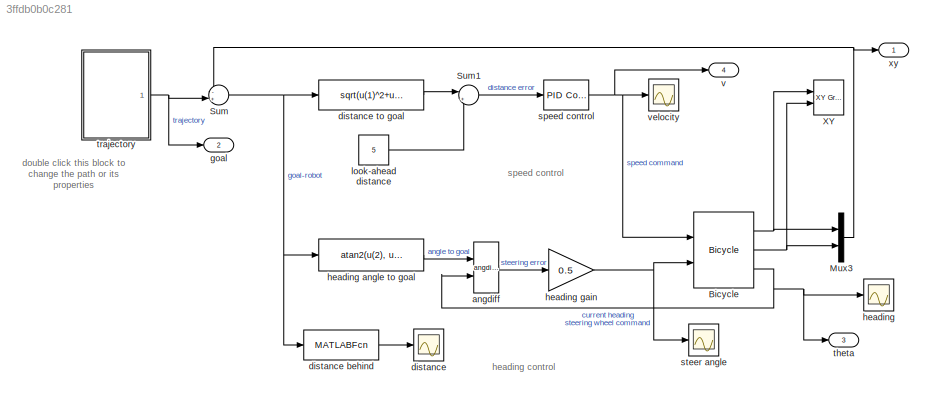
MODEL slx_3ffdb0b0c281
KIND model
CONFIG AbsTol = auto
CONFIG EnableMultiTasking = on
CONFIG FixedStep = 0.2
CONFIG MaxStep = 0.1
CONFIG MinStep = auto
CONFIG RelTol = 1e-3
CONFIG SampleTimeConstraint = Unconstrained
CONFIG Solver = ode45
CONFIG SolverName = ode45
CONFIG StartFcn = % remove the red dashed line draw in StopFcn\nh = findobj('Tag',  'SL_PURSUIT_PATH');\nif ~isempty(h)\n    delete(h)\nend
CONFIG StartTime = 0.0
CONFIG StopFcn = % get the waypoints from trajectory block\nh = getSimulinkBlockHandle([gcs '/trajectory'])\npath = str2num(get_param(h, 'path'));\n\n% overlay it on the XY scope, tag it so it can be cleaned up in StartFcn\nset(0, 'ShowHiddenHandles', 'on')\nhold on\nplot(path(:,1), path(:,2), 'Color',  'red', 'LineStyle', '--', 'LineWidth', 2, 'Tag', 'SL_PURSUIT_PATH')\nhold off\nset(0, 'ShowHiddenHandles', 'on')
CONFIG StopTime = 76
BLOCK [Reference] Bicycle  REF=roblocks/Vehicles/Bicycle  (lib defined in mdl_2a292b13c81b, mdl_69400f8cfe22, +12 more)
  Ports = [2, 3]
  SourceBlock = roblocks/Vehicles/Bicycle
BLOCK [Mux] Mux3
  DisplayOption = bar
  Inputs = 2
  Ports = [2, 1]
BLOCK [Sum] Sum
  IconShape = round
  InputSameDT = off
  Inputs = -+|
  OutDataTypeStr = Inherit: Inherit via internal rule
  Ports = [2, 1]
  SaturateOnIntegerOverflow = off
BLOCK [Sum] Sum1
  IconShape = round
  InputSameDT = off
  Inputs = |+-
  OutDataTypeStr = Inherit: Inherit via internal rule
  Ports = [2, 1]
  SaturateOnIntegerOverflow = off
BLOCK [Reference] XY  REF=simulink/Sinks/XY Graph
  Ports = [2]
  SourceBlock = simulink/Sinks/XY Graph
  SourceProductBaseCode = SL
  SourceProductName = Simulink
  SourceType = XY scope.
BLOCK [Reference] angdiff  REF=roblocks/Toolbox/angdiff  (lib defined in mdl_2a292b13c81b, mdl_69400f8cfe22, +12 more)
  Ports = [2, 1]
  SourceBlock = roblocks/Toolbox/angdiff
BLOCK [Scope] distance
  Floating = off
  NumInputPorts = 1
  Ports = [1]
  ScopeSpecificationString = Simulink.scopes.TimeScopeBlockCfg('CurrentConfiguration', extmgr.ConfigurationSet(extmgr.Configuration('Core','General UI',true),extmgr.Configuration('Core','Source UI',true),extmgr.Configuration('Sources','WiredSimulink',true,'DataLoggingVariableName','ScopeData3','DataLoggingSaveFormat','StructureWithTime','DataLoggingLimitDataPoints',true,'DataLoggingDecimation','1'),extmgr.Configuration('Visua...<+1671ch>
BLOCK [MATLABFcn] distance behind
  MATLABFcn = norm(u)
  Ports = [1, 1]
BLOCK [Fcn] distance to goal
  Expr = sqrt(u(1)^2+u(2)^2)
BLOCK [Outport] goal
  IconDisplay = Port number
  Port = 2
BLOCK [Scope] heading 
  Floating = off
  NumInputPorts = 1
  Ports = [1]
  ScopeSpecificationString = Simulink.scopes.TimeScopeBlockCfg('CurrentConfiguration', extmgr.ConfigurationSet(extmgr.Configuration('Core','General UI',true),extmgr.Configuration('Core','Source UI',true),extmgr.Configuration('Sources','WiredSimulink',true,'DataLoggingSaveFormat','StructureWithTime','DataLoggingLimitDataPoints',true,'DataLoggingDecimation','1'),extmgr.Configuration('Visuals','Time Domain',true,'SerializedDispl...<+1629ch>
BLOCK [Fcn] heading angle to goal
  Expr = atan2(u(2), u(1))
BLOCK [Gain] heading gain
  Gain = 0.5
  OutDataTypeStr = Inherit: Inherit via internal rule
  ParamDataTypeStr = Inherit: Inherit via internal rule
  SaturateOnIntegerOverflow = off
BLOCK [Constant] look-ahead distance
  Value = 5
BLOCK [Reference] speed control  REF=simulink_need_slupdate/PID Controller
  Ports = [1, 1]
  SourceBlock = simulink_need_slupdate/PID Controller
  SourceProductBaseCode = SL
  SourceProductName = Simulink
  SourceType = PID Controller
BLOCK [Scope] steer angle
  Floating = off
  NumInputPorts = 1
  Ports = [1]
  ScopeSpecificationString = Simulink.scopes.TimeScopeBlockCfg('CurrentConfiguration', extmgr.ConfigurationSet(extmgr.Configuration('Core','General UI',true),extmgr.Configuration('Core','Source UI',true),extmgr.Configuration('Sources','WiredSimulink',true,'DataLoggingVariableName','ScopeData2','DataLoggingSaveFormat','StructureWithTime','DataLoggingLimitDataPoints',true,'DataLoggingDecimation','1'),extmgr.Configuration('Visua...<+1669ch>
BLOCK [Outport] theta
  IconDisplay = Port number
  Port = 3
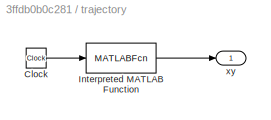
BLOCK [SubSystem] trajectory
  Ports = [0, 1]
  RequestExecContextInheritance = off
BLOCK [Clock] trajectory/Clock
BLOCK [MATLABFcn] trajectory/Interpreted MATLAB Function
  MATLABFcn = interp1( linspace(0, total_time, size(robot_traj,1)), robot_traj, u)
  Ports = [1, 1]
BLOCK [Outport] trajectory/xy
  IconDisplay = Port number
BLOCK [Outport] v
  IconDisplay = Port number
  Port = 4
BLOCK [Scope] velocity
  Floating = off
  NumInputPorts = 1
  Ports = [1]
  ScopeSpecificationString = Simulink.scopes.TimeScopeBlockCfg('CurrentConfiguration', extmgr.ConfigurationSet(extmgr.Configuration('Core','General UI',true),extmgr.Configuration('Core','Source UI',true),extmgr.Configuration('Sources','WiredSimulink',true,'DataLoggingVariableName','ScopeData1','DataLoggingSaveFormat','StructureWithTime','DataLoggingLimitDataPoints',true,'DataLoggingDecimation','1'),extmgr.Configuration('Visua...<+1674ch>
BLOCK [Outport] xy
  IconDisplay = Port number
ANNOTATION (root): double click this block to change the path or its properties
ANNOTATION (root): heading control
ANNOTATION (root): speed control
NET Bicycle:1 -> Mux3:1, XY:1
NET Bicycle:2 -> Mux3:2, XY:2
NET Bicycle:3 -> angdiff:2, heading :1, theta:1
NET Mux3:1 -> Sum:1, xy:1
LINE Sum1:1 -> speed control:1
NET Sum:1 -> distance behind:1, distance to goal:1, heading angle to goal:1
LINE angdiff:1 -> heading gain:1
LINE distance behind:1 -> distance:1
LINE distance to goal:1 -> Sum1:1
LINE heading angle to goal:1 -> angdiff:1
NET heading gain:1 -> Bicycle:2, steer angle:1
LINE look-ahead distance:1 -> Sum1:2
NET speed control:1 -> Bicycle:1, v:1, velocity:1
LINE trajectory/Clock:1 -> trajectory/Interpreted MATLAB Function:1
LINE trajectory/Interpreted MATLAB Function:1 -> trajectory/xy:1
NET trajectory:1 -> Sum:2, goal:1
note: NET lines group one-source signal fan-out (src -> all destinations, sorted); 1:1 wires keep LINE
